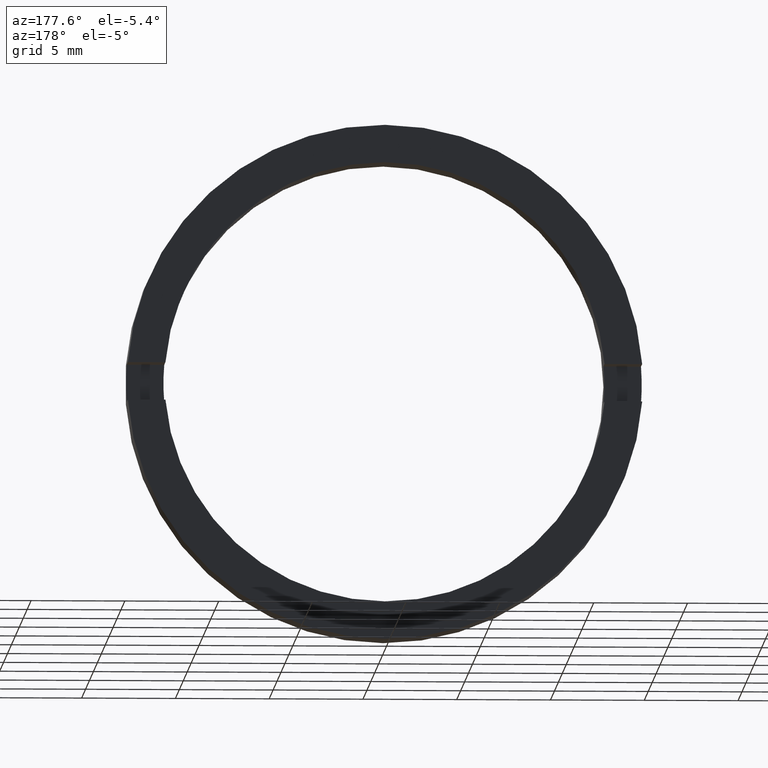
[diagram: clean part render]
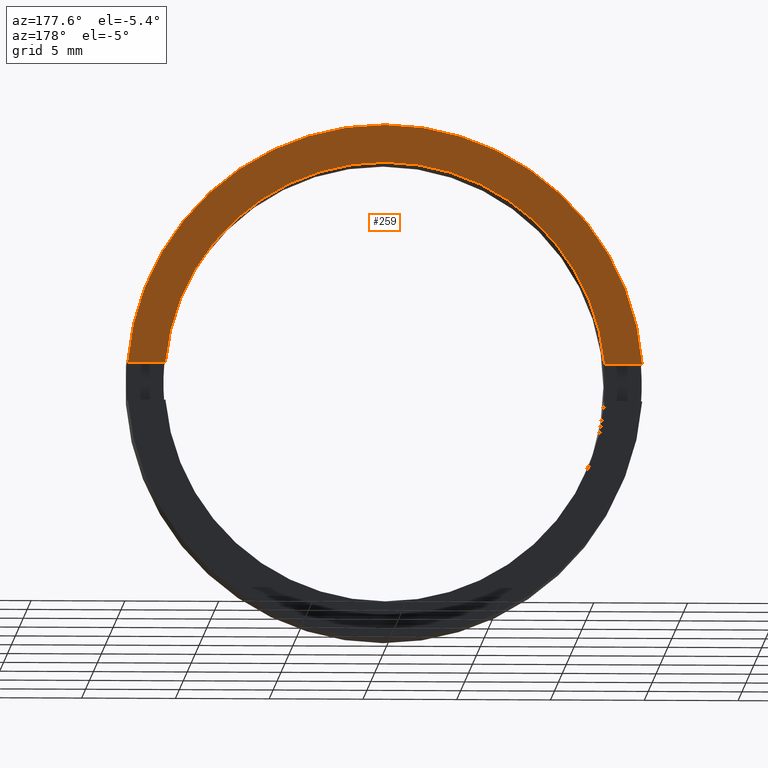
[diagram: same view with one face highlighted and labeled with its STEP entity id]
A machine part, auxiliary view. The second image highlights one B-rep face of the part: STEP entity #259.
In plain terms, the highlighted planar face has unit normal (0, -1, 0).
Its self-contained STEP definition (entity closure, byte-faithful):
#1 = DIRECTION ( 'NONE',  ( 0.0000000000000000000, -1.000000000000000000, 0.0000000000000000000 ) ) ;
#10 = VECTOR ( 'NONE', #275, 1000.000000000000000 ) ;
#11 = EDGE_CURVE ( 'NONE', #53, #174, #494, .T. ) ;
#23 = CARTESIAN_POINT ( 'NONE',  ( -26.85254027261461800, -1.964249787179430900, 1.000000000000000000 ) ) ;
#27 = FACE_OUTER_BOUND ( 'NONE', #413, .T. ) ;
#35 = CARTESIAN_POINT ( 'NONE',  ( 11.75000000000000700, -1.964249787179430900, 0.0000000000000000000 ) ) ;
#53 = VERTEX_POINT ( 'NONE', #95 ) ;
#64 = VERTEX_POINT ( 'NONE', #456 ) ;
#73 = CARTESIAN_POINT ( 'NONE',  ( 0.0000000000000000000, -1.964249787179434000, 13.75000000000000700 ) ) ;
#95 = CARTESIAN_POINT ( 'NONE',  ( -13.71358815190248800, -1.964249787179430900, 1.000000000000000000 ) ) ;
#99 = EDGE_CURVE ( 'NONE', #53, #209, #262, .T. ) ;
#100 = DIRECTION ( 'NONE',  ( -0.0000000000000000000, 1.000000000000000000, -0.0000000000000000000 ) ) ;
#101 = VERTEX_POINT ( 'NONE', #138 ) ;
#105 = DIRECTION ( 'NONE',  ( 0.0000000000000000000, 0.0000000000000000000, 1.000000000000000000 ) ) ;
#115 = ORIENTED_EDGE ( 'NONE', *, *, #153, .F. ) ;
#118 = AXIS2_PLACEMENT_3D ( 'NONE', #145, #100, #452 ) ;
#128 = VERTEX_POINT ( 'NONE', #181 ) ;
#138 = CARTESIAN_POINT ( 'NONE',  ( 11.70736947396810200, -1.964249787179434000, 0.9999999999999995600 ) ) ;
#140 = CARTESIAN_POINT ( 'NONE',  ( -11.70736947396810200, -1.964249787179434000, 0.9999999999999995600 ) ) ;
#145 = CARTESIAN_POINT ( 'NONE',  ( 0.0000000000000000000, -1.964249787179434000, 0.0000000000000000000 ) ) ;
#153 = EDGE_CURVE ( 'NONE', #64, #101, #166, .T. ) ;
#159 = CARTESIAN_POINT ( 'NONE',  ( 0.0000000000000000000, -1.964249787179434000, 0.0000000000000000000 ) ) ;
#166 = CIRCLE ( 'NONE', #289, 11.75000000000000700 ) ;
#174 = VERTEX_POINT ( 'NONE', #140 ) ;
#181 = CARTESIAN_POINT ( 'NONE',  ( 13.71358815190246900, -1.964249787179430900, 1.000000000000000000 ) ) ;
#184 = DIRECTION ( 'NONE',  ( -0.0000000000000000000, 1.000000000000000000, -0.0000000000000000000 ) ) ;
#190 = CARTESIAN_POINT ( 'NONE',  ( -26.85254027261461800, -1.964249787179430900, 1.000000000000000000 ) ) ;
#191 = DIRECTION ( 'NONE',  ( -0.0000000000000000000, 1.000000000000000000, -0.0000000000000000000 ) ) ;
#202 = DIRECTION ( 'NONE',  ( -0.0000000000000000000, 1.000000000000000000, -0.0000000000000000000 ) ) ;
#209 = VERTEX_POINT ( 'NONE', #73 ) ;
#216 = EDGE_CURVE ( 'NONE', #101, #128, #355, .T. ) ;
#232 = EDGE_CURVE ( 'NONE', #174, #64, #256, .T. ) ;
#256 = CIRCLE ( 'NONE', #257, 11.75000000000000700 ) ;
#257 = AXIS2_PLACEMENT_3D ( 'NONE', #424, #191, #462 ) ;
#259 = ADVANCED_FACE ( 'NONE', ( #27 ), #390, .F. ) ;
#262 = CIRCLE ( 'NONE', #118, 13.75000000000000700 ) ;
#275 = DIRECTION ( 'NONE',  ( 1.000000000000000000, 0.0000000000000000000, 0.0000000000000000000 ) ) ;
#287 = ORIENTED_EDGE ( 'NONE', *, *, #232, .F. ) ;
#289 = AXIS2_PLACEMENT_3D ( 'NONE', #420, #184, #105 ) ;
#308 = ORIENTED_EDGE ( 'NONE', *, *, #216, .F. ) ;
#318 = ORIENTED_EDGE ( 'NONE', *, *, #99, .T. ) ;
#326 = ORIENTED_EDGE ( 'NONE', *, *, #421, .T. ) ;
#332 = AXIS2_PLACEMENT_3D ( 'NONE', #35, #1, #425 ) ;
#334 = DIRECTION ( 'NONE',  ( 1.000000000000000000, 0.0000000000000000000, 0.0000000000000000000 ) ) ;
#355 = LINE ( 'NONE', #190, #10 ) ;
#390 = PLANE ( 'NONE',  #332 ) ;
#401 = ORIENTED_EDGE ( 'NONE', *, *, #11, .F. ) ;
#407 = AXIS2_PLACEMENT_3D ( 'NONE', #159, #202, #475 ) ;
#413 = EDGE_LOOP ( 'NONE', ( #318, #326, #308, #115, #287, #401 ) ) ;
#420 = CARTESIAN_POINT ( 'NONE',  ( 0.0000000000000000000, -1.964249787179434000, 0.0000000000000000000 ) ) ;
#421 = EDGE_CURVE ( 'NONE', #209, #128, #471, .T. ) ;
#424 = CARTESIAN_POINT ( 'NONE',  ( 0.0000000000000000000, -1.964249787179434000, 0.0000000000000000000 ) ) ;
#425 = DIRECTION ( 'NONE',  ( 0.0000000000000000000, -0.0000000000000000000, -1.000000000000000000 ) ) ;
#450 = VECTOR ( 'NONE', #334, 1000.000000000000000 ) ;
#452 = DIRECTION ( 'NONE',  ( 0.0000000000000000000, 0.0000000000000000000, 1.000000000000000000 ) ) ;
#456 = CARTESIAN_POINT ( 'NONE',  ( 0.0000000000000000000, -1.964249787179434000, 11.75000000000000700 ) ) ;
#462 = DIRECTION ( 'NONE',  ( 0.0000000000000000000, 0.0000000000000000000, 1.000000000000000000 ) ) ;
#471 = CIRCLE ( 'NONE', #407, 13.75000000000000700 ) ;
#475 = DIRECTION ( 'NONE',  ( 0.0000000000000000000, 0.0000000000000000000, 1.000000000000000000 ) ) ;
#494 = LINE ( 'NONE', #23, #450 ) ;